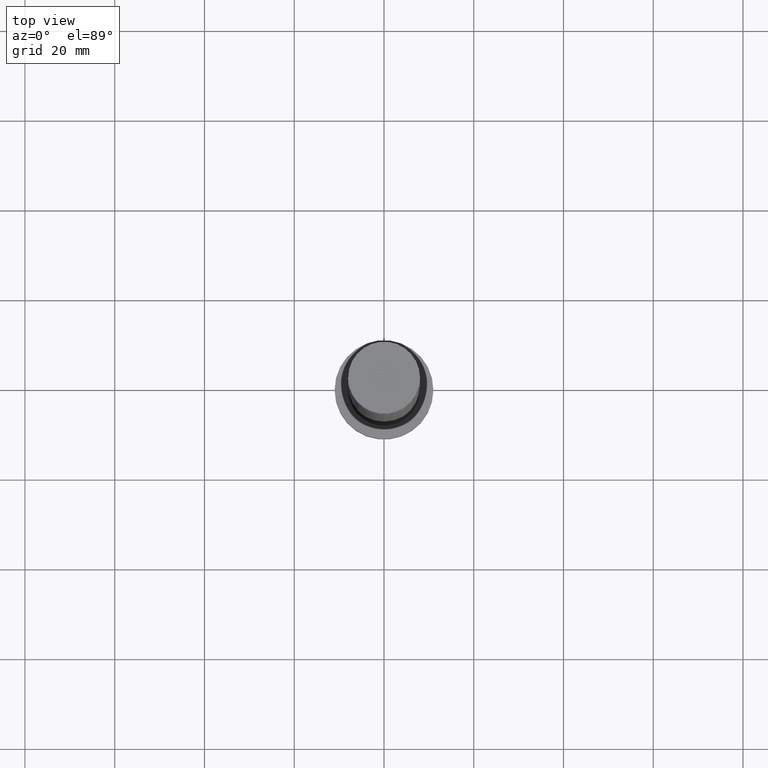
[diagram: clean part render]
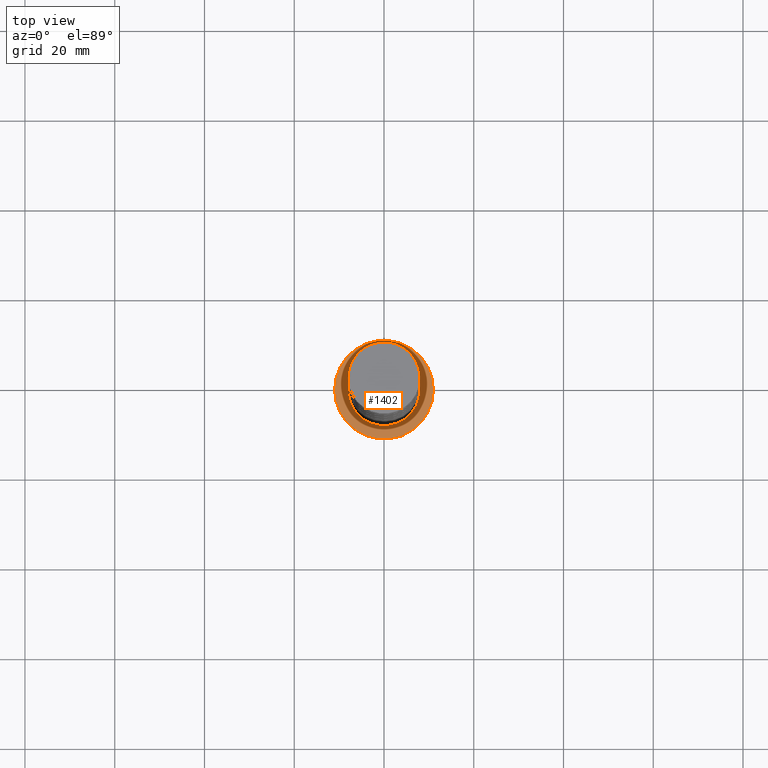
[diagram: same view with one face highlighted and labeled with its STEP entity id]
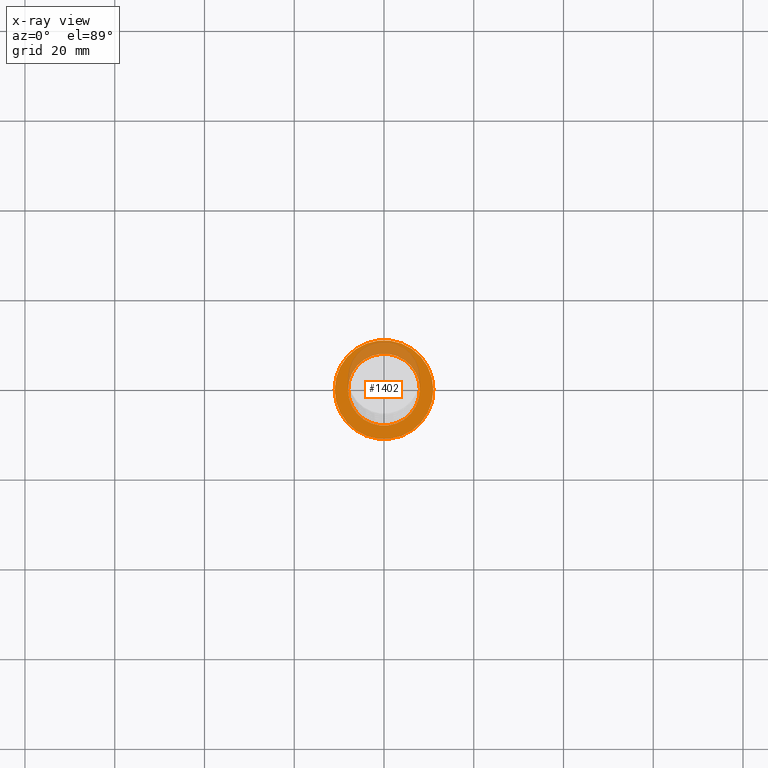
[diagram: x-ray of the same camera — body ghosted, the highlighted face saturated]
A machine part, top view. The second image highlights one B-rep face of the part: STEP entity #1402.
The next image is the same camera in x-ray: the body ghosted, the highlighted face saturated — about 24% of this face is hidden behind the body in this view.
In plain terms, the highlighted planar face has unit normal (0, 0, 1).
Its self-contained STEP definition (entity closure, byte-faithful):
#34 = ORIENTED_EDGE ( 'NONE', *, *, #610, .T. ) ;
#183 = CARTESIAN_POINT ( 'NONE',  ( 8.000000000000000000, 9.797174393178825657E-16, 7.000000000000000000 ) ) ;
#234 = DIRECTION ( 'NONE',  ( 0.000000000000000000, 0.000000000000000000, 1.000000000000000000 ) ) ;
#273 = CARTESIAN_POINT ( 'NONE',  ( 0.000000000000000000, 0.000000000000000000, 7.000000000000000000 ) ) ;
#280 = DIRECTION ( 'NONE',  ( 1.000000000000000000, 0.000000000000000000, 0.000000000000000000 ) ) ;
#327 = CARTESIAN_POINT ( 'NONE',  ( 0.000000000000000000, 0.000000000000000000, 7.000000000000000000 ) ) ;
#382 = VERTEX_POINT ( 'NONE', #1496 ) ;
#401 = AXIS2_PLACEMENT_3D ( 'NONE', #1549, #909, #1420 ) ;
#409 = CARTESIAN_POINT ( 'NONE',  ( -8.000000000000000000, 0.000000000000000000, 7.000000000000000000 ) ) ;
#428 = AXIS2_PLACEMENT_3D ( 'NONE', #885, #1128, #1377 ) ;
#582 = DIRECTION ( 'NONE',  ( 1.000000000000000000, 0.000000000000000000, 0.000000000000000000 ) ) ;
#598 = EDGE_CURVE ( 'NONE', #695, #1254, #1436, .T. ) ;
#610 = EDGE_CURVE ( 'NONE', #957, #382, #979, .T. ) ;
#691 = CIRCLE ( 'NONE', #1299, 11.00000000000000000 ) ;
#695 = VERTEX_POINT ( 'NONE', #409 ) ;
#712 = DIRECTION ( 'NONE',  ( 1.000000000000000000, 0.000000000000000000, -0.000000000000000000 ) ) ;
#727 = EDGE_LOOP ( 'NONE', ( #1182, #935 ) ) ;
#770 = AXIS2_PLACEMENT_3D ( 'NONE', #327, #234, #712 ) ;
#838 = FACE_BOUND ( 'NONE', #727, .T. ) ;
#853 = FACE_OUTER_BOUND ( 'NONE', #1243, .T. ) ;
#885 = CARTESIAN_POINT ( 'NONE',  ( 0.000000000000000000, 0.000000000000000000, 7.000000000000000000 ) ) ;
#909 = DIRECTION ( 'NONE',  ( 0.000000000000000000, 0.000000000000000000, 1.000000000000000000 ) ) ;
#935 = ORIENTED_EDGE ( 'NONE', *, *, #1003, .F. ) ;
#957 = VERTEX_POINT ( 'NONE', #1274 ) ;
#979 = CIRCLE ( 'NONE', #981, 11.00000000000000000 ) ;
#981 = AXIS2_PLACEMENT_3D ( 'NONE', #273, #1291, #280 ) ;
#988 = DIRECTION ( 'NONE',  ( 0.000000000000000000, 0.000000000000000000, 1.000000000000000000 ) ) ;
#990 = ORIENTED_EDGE ( 'NONE', *, *, #1471, .T. ) ;
#998 = CARTESIAN_POINT ( 'NONE',  ( 0.000000000000000000, 0.000000000000000000, 7.000000000000000000 ) ) ;
#1003 = EDGE_CURVE ( 'NONE', #1254, #695, #1324, .T. ) ;
#1109 = PLANE ( 'NONE',  #770 ) ;
#1128 = DIRECTION ( 'NONE',  ( 0.000000000000000000, 0.000000000000000000, 1.000000000000000000 ) ) ;
#1182 = ORIENTED_EDGE ( 'NONE', *, *, #598, .F. ) ;
#1243 = EDGE_LOOP ( 'NONE', ( #990, #34 ) ) ;
#1254 = VERTEX_POINT ( 'NONE', #183 ) ;
#1274 = CARTESIAN_POINT ( 'NONE',  ( 11.00000000000000000, 1.347111479062088405E-15, 7.000000000000000000 ) ) ;
#1291 = DIRECTION ( 'NONE',  ( 0.000000000000000000, 0.000000000000000000, 1.000000000000000000 ) ) ;
#1299 = AXIS2_PLACEMENT_3D ( 'NONE', #998, #988, #582 ) ;
#1324 = CIRCLE ( 'NONE', #428, 8.000000000000000000 ) ;
#1377 = DIRECTION ( 'NONE',  ( 1.000000000000000000, 0.000000000000000000, 0.000000000000000000 ) ) ;
#1402 = ADVANCED_FACE ( 'NONE', ( #838, #853 ), #1109, .T. ) ;
#1420 = DIRECTION ( 'NONE',  ( 1.000000000000000000, 0.000000000000000000, 0.000000000000000000 ) ) ;
#1436 = CIRCLE ( 'NONE', #401, 8.000000000000000000 ) ;
#1471 = EDGE_CURVE ( 'NONE', #382, #957, #691, .T. ) ;
#1496 = CARTESIAN_POINT ( 'NONE',  ( -11.00000000000000000, 0.000000000000000000, 7.000000000000000000 ) ) ;
#1549 = CARTESIAN_POINT ( 'NONE',  ( 0.000000000000000000, 0.000000000000000000, 7.000000000000000000 ) ) ;